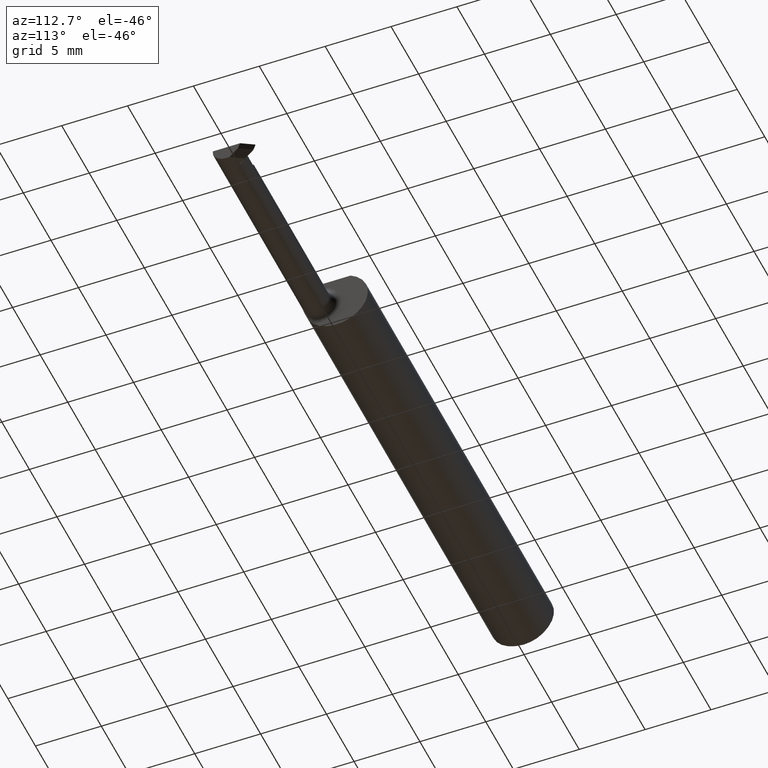
[diagram: clean part render]
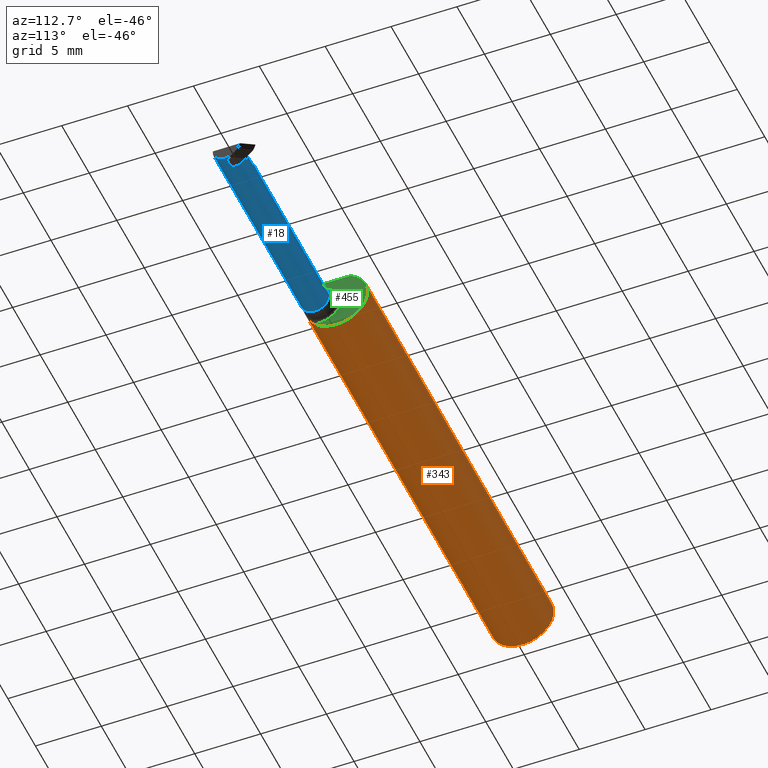
[diagram: same view with three faces highlighted in distinct colors, each labeled with its STEP entity id]
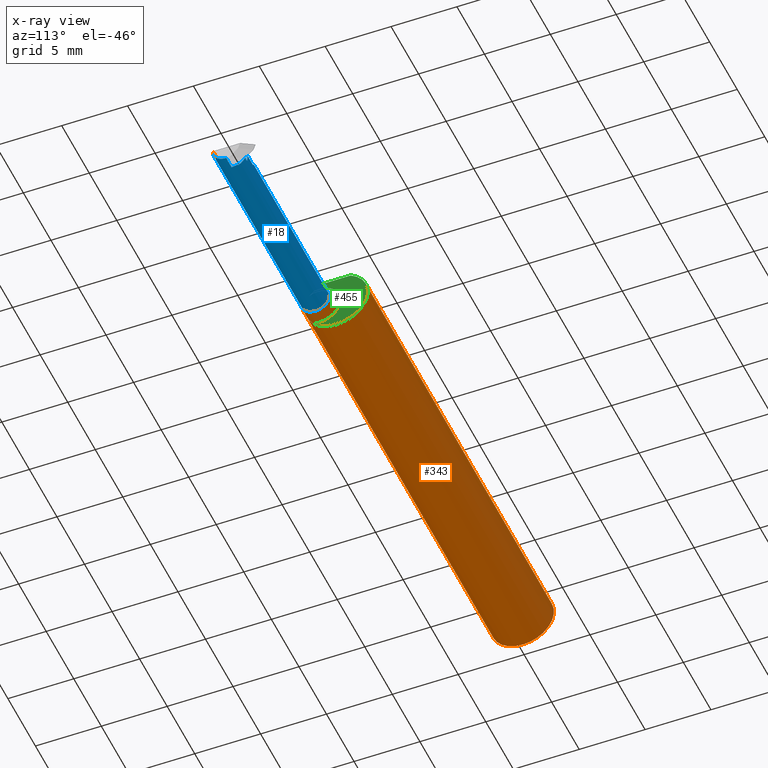
[diagram: x-ray of the same camera — body ghosted, the three highlighted faces saturated]
A machine part, auxiliary view with three faces highlighted in distinct colors.
The next image is the same camera in x-ray (body ghosted, the three faces saturated) — at least one of them is partly hidden behind the body in this view.
Their STEP definitions:

[orange] entity #343 — the highlighted cylindrical surface (edge-blend (fillet) strip) has radius 2.3774 mm, axis along (-1, -0, -0).
#3 = EDGE_CURVE ( 'NONE', #711, #316, #769, .T. ) ;
#8 = AXIS2_PLACEMENT_3D ( 'NONE', #743, #70, #458 ) ;
#12 = DIRECTION ( 'NONE',  ( -1.000000000000000000, -0.000000000000000000, -0.000000000000000000 ) ) ;
#13 = VERTEX_POINT ( 'NONE', #334 ) ;
#17 = CARTESIAN_POINT ( 'NONE',  ( 2.999519565323725069E-32, -0.09359999999999998876, 2.449293598294709866E-16 ) ) ;
#29 = EDGE_CURVE ( 'NONE', #225, #13, #554, .T. ) ;
#37 = CARTESIAN_POINT ( 'NONE',  ( 1.350331455114174739, -0.08838398833671951005, -0.03113919291468855710 ) ) ;
#47 = EDGE_CURVE ( 'NONE', #607, #759, #72, .T. ) ;
#48 = ORIENTED_EDGE ( 'NONE', *, *, #138, .F. ) ;
#55 = EDGE_CURVE ( 'NONE', #57, #711, #511, .T. ) ;
#57 = VERTEX_POINT ( 'NONE', #577 ) ;
#59 = AXIS2_PLACEMENT_3D ( 'NONE', #445, #574, #758 ) ;
#63 = LINE ( 'NONE', #794, #655 ) ;
#70 = DIRECTION ( 'NONE',  ( 1.000000000000000000, 2.788895906680674731E-17, 0.000000000000000000 ) ) ;
#72 = CIRCLE ( 'NONE', #59, 0.09360000000000001652 ) ;
#75 = DIRECTION ( 'NONE',  ( -1.000000000000000000, -0.000000000000000000, -0.000000000000000000 ) ) ;
#76 = CARTESIAN_POINT ( 'NONE',  ( 1.363637246768939493, -0.09207014925426142138, 0.01685371224087028538 ) ) ;
#80 = EDGE_CURVE ( 'NONE', #13, #416, #277, .T. ) ;
#82 = CARTESIAN_POINT ( 'NONE',  ( 1.360061339936166513, -0.09170362580915404627, 0.01875949767692893649 ) ) ;
#119 = VERTEX_POINT ( 'NONE', #779 ) ;
#123 = ORIENTED_EDGE ( 'NONE', *, *, #377, .F. ) ;
#128 = CARTESIAN_POINT ( 'NONE',  ( 1.339999999999999858, 0.000000000000000000, 0.000000000000000000 ) ) ;
#136 = CARTESIAN_POINT ( 'NONE',  ( 1.893146287756234392, -0.09207014925373124825, 0.01685371224376561172 ) ) ;
#138 = EDGE_CURVE ( 'NONE', #585, #313, #425, .T. ) ;
#142 = CARTESIAN_POINT ( 'NONE',  ( 1.340000000000000080, -0.06665037313432836674, 0.06571672360255645384 ) ) ;
#143 = ORIENTED_EDGE ( 'NONE', *, *, #29, .F. ) ;
#150 = VECTOR ( 'NONE', #75, 39.37007874015748143 ) ;
#172 = ORIENTED_EDGE ( 'NONE', *, *, #768, .F. ) ;
#175 = ORIENTED_EDGE ( 'NONE', *, *, #47, .T. ) ;
#196 = CARTESIAN_POINT ( 'NONE',  ( 1.347959848388074811, -0.08665969772256693071, 0.03571742193933166026 ) ) ;
#201 = VECTOR ( 'NONE', #12, 39.37007874015748143 ) ;
#207 = CARTESIAN_POINT ( 'NONE',  ( 1.910000000000000142, -0.09360000000000005815, 1.102182119232617911E-17 ) ) ;
#208 = DIRECTION ( 'NONE',  ( -1.000000000000000000, -0.000000000000000000, -0.000000000000000000 ) ) ;
#223 = CARTESIAN_POINT ( 'NONE',  ( 1.339999999999999858, -0.04209513035969859179, 0.08359999999999992437 ) ) ;
#225 = VERTEX_POINT ( 'NONE', #223 ) ;
#227 = CARTESIAN_POINT ( 'NONE',  ( 1.364999999999999769, -0.09207014925373117886, -0.01685371224376598295 ) ) ;
#228 = CARTESIAN_POINT ( 'NONE',  ( 1.360040276532751058, -0.09170035127622422344, -0.01877567467121205383 ) ) ;
#237 = CARTESIAN_POINT ( 'NONE',  ( 2.000000000000000000, -0.09207014925373097070, -0.01685371224376563601 ) ) ;
#240 = FACE_OUTER_BOUND ( 'NONE', #685, .T. ) ;
#255 = DIRECTION ( 'NONE',  ( 0.000000000000000000, 0.000000000000000000, -1.000000000000000000 ) ) ;
#256 = VECTOR ( 'NONE', #586, 39.37007874015748143 ) ;
#259 = CARTESIAN_POINT ( 'NONE',  ( 0.009999999999999877043, 0.000000000000000000, -0.09360000000000001652 ) ) ;
#265 = CARTESIAN_POINT ( 'NONE',  ( 1.344091173271814377, -0.08239225417103612781, 0.04468952776629343815 ) ) ;
#273 = CARTESIAN_POINT ( 'NONE',  ( 1.350323772047401061, -0.08838176252376904463, 0.03114868400121339337 ) ) ;
#277 = B_SPLINE_CURVE_WITH_KNOTS ( 'NONE', 3,
 ( #142, #507, #746, #631, #265, #196, #273, #449, #688, #327, #82, #522, #76, #515 ),
 .UNSPECIFIED., .F., .F.,
 ( 4, 2, 2, 2, 2, 2, 4 ),
 ( 4.596658918362352711E-05, 0.0004513928604954075175, 0.0008568191318071911216, 0.001262245403118974129, 0.001464958538774865579, 0.001566315106602804257, 0.001667671674430742934 ),
 .UNSPECIFIED. ) ;
#279 = CARTESIAN_POINT ( 'NONE',  ( 1.363627452150747432, -0.09207014925373115111, -0.01685371224376602112 ) ) ;
#291 = ORIENTED_EDGE ( 'NONE', *, *, #55, .T. ) ;
#293 = CARTESIAN_POINT ( 'NONE',  ( 0.009999999999999877043, -0.04209513035969860567, 0.08359999999999989662 ) ) ;
#294 = CARTESIAN_POINT ( 'NONE',  ( 1.354665360541867258, -0.09032542640524104938, -0.02464512177151425773 ) ) ;
#298 = CARTESIAN_POINT ( 'NONE',  ( 1.342599756579036407, -0.07984340602545496324, -0.04912629365152901967 ) ) ;
#304 = CARTESIAN_POINT ( 'NONE',  ( 0.000000000000000000, 0.000000000000000000, 0.000000000000000000 ) ) ;
#313 = VERTEX_POINT ( 'NONE', #436 ) ;
#316 = VERTEX_POINT ( 'NONE', #434 ) ;
#327 = CARTESIAN_POINT ( 'NONE',  ( 1.359051853270285326, -0.09151898401755900747, 0.01965164102476858049 ) ) ;
#333 = EDGE_CURVE ( 'NONE', #714, #585, #606, .T. ) ;
#334 = CARTESIAN_POINT ( 'NONE',  ( 1.340000000000000080, -0.06665037313432836674, 0.06571672360255645384 ) ) ;
#343 = ADVANCED_FACE ( 'NONE', ( #240 ), #671, .T. ) ;
#346 = CARTESIAN_POINT ( 'NONE',  ( 1.340550322316036880, -0.07386771902718257399, -0.05772280571319391568 ) ) ;
#358 = CARTESIAN_POINT ( 'NONE',  ( 1.658607695154586503, -0.09207014925373123437, -0.01685371224376563948 ) ) ;
#363 = DIRECTION ( 'NONE',  ( -1.000000000000000000, -0.000000000000000000, -0.000000000000000000 ) ) ;
#377 = EDGE_CURVE ( 'NONE', #607, #225, #63, .T. ) ;
#383 = CARTESIAN_POINT ( 'NONE',  ( 1.898710277283380599, -0.09308865393932075349, 0.01128972271661917749 ) ) ;
#394 = EDGE_CURVE ( 'NONE', #395, #119, #559, .T. ) ;
#395 = VERTEX_POINT ( 'NONE', #621 ) ;
#411 = DIRECTION ( 'NONE',  ( 0.000000000000000000, 0.000000000000000000, 1.000000000000000000 ) ) ;
#412 = CARTESIAN_POINT ( 'NONE',  ( 1.364999999999999769, -0.09207014925373117886, -0.01685371224376598295 ) ) ;
#415 = CARTESIAN_POINT ( 'NONE',  ( 1.344085356245837692, -0.08239036684830187973, -0.04469806793346454282 ) ) ;
#416 = VERTEX_POINT ( 'NONE', #618 ) ;
#420 = CARTESIAN_POINT ( 'NONE',  ( 1.339999999999999636, -0.07042526556309514074, -0.06188820058547970376 ) ) ;
#425 = B_SPLINE_CURVE_WITH_KNOTS ( 'NONE', 3,
 ( #412, #279, #647, #228, #587, #470, #294, #37, #640, #415, #298, #346, #420, #717 ),
 .UNSPECIFIED., .F., .F.,
 ( 4, 2, 2, 2, 2, 2, 4 ),
 ( 1.967287740839726378E-07, 0.0001030870799334352074, 0.0002059774310927864241, 0.0004117581334114743833, 0.0008233195380488391888, 0.001234880942686203886, 0.001646442347323568258 ),
 .UNSPECIFIED. ) ;
#434 = CARTESIAN_POINT ( 'NONE',  ( 1.893146287756234392, -0.09207014925373124825, 0.01685371224376561172 ) ) ;
#436 = CARTESIAN_POINT ( 'NONE',  ( 1.340000000000000080, -0.06665037313432836674, -0.06571672360255645384 ) ) ;
#439 = AXIS2_PLACEMENT_3D ( 'NONE', #304, #363, #734 ) ;
#440 = CARTESIAN_POINT ( 'NONE',  ( 0.000000000000000000, 0.04209513035969860567, 0.08359999999999989662 ) ) ;
#445 = CARTESIAN_POINT ( 'NONE',  ( 0.009999999999999877043, 0.000000000000000000, 0.000000000000000000 ) ) ;
#449 = CARTESIAN_POINT ( 'NONE',  ( 1.354680805881167904, -0.09033173497866223145, 0.02462299273440530026 ) ) ;
#452 = CIRCLE ( 'NONE', #784, 0.09360000000000001652 ) ;
#458 = DIRECTION ( 'NONE',  ( 0.000000000000000000, 1.000000000000000000, 0.000000000000000000 ) ) ;
#470 = CARTESIAN_POINT ( 'NONE',  ( 1.356246460913175467, -0.09087368479272676935, -0.02250960670043058304 ) ) ;
#487 = EDGE_CURVE ( 'NONE', #759, #119, #452, .T. ) ;
#490 = ORIENTED_EDGE ( 'NONE', *, *, #600, .T. ) ;
#502 = CIRCLE ( 'NONE', #727, 0.09360000000000001652 ) ;
#504 = CARTESIAN_POINT ( 'NONE',  ( 1.904343558428414296, -0.09359999999999998876, 0.005656441571585646769 ) ) ;
#505 = DIRECTION ( 'NONE',  ( 0.000000000000000000, 1.000000000000000000, 0.000000000000000000 ) ) ;
#507 = CARTESIAN_POINT ( 'NONE',  ( 1.339999999999998748, -0.07042168361208703264, 0.06189183342592221443 ) ) ;
#511 = LINE ( 'NONE', #17, #201 ) ;
#514 = VECTOR ( 'NONE', #788, 39.37007874015748143 ) ;
#515 = CARTESIAN_POINT ( 'NONE',  ( 1.364999999999999769, -0.09207014925373117886, 0.01685371224376597948 ) ) ;
#517 = ORIENTED_EDGE ( 'NONE', *, *, #394, .F. ) ;
#522 = CARTESIAN_POINT ( 'NONE',  ( 1.362341178892590765, -0.09198016210675404036, 0.01735291095036459175 ) ) ;
#554 = CIRCLE ( 'NONE', #8, 0.09360000000000001652 ) ;
#557 = ORIENTED_EDGE ( 'NONE', *, *, #487, .T. ) ;
#559 = LINE ( 'NONE', #440, #150 ) ;
#574 = DIRECTION ( 'NONE',  ( 1.000000000000000000, 0.000000000000000000, 0.000000000000000000 ) ) ;
#577 = CARTESIAN_POINT ( 'NONE',  ( 2.000000000000000000, -0.09360000000000001652, 0.000000000000000000 ) ) ;
#585 = VERTEX_POINT ( 'NONE', #227 ) ;
#586 = DIRECTION ( 'NONE',  ( 1.000000000000000000, 2.788895906680674731E-17, 0.000000000000000000 ) ) ;
#587 = CARTESIAN_POINT ( 'NONE',  ( 1.359025502329856971, -0.09151353859653628409, -0.01967662315907503859 ) ) ;
#599 = CARTESIAN_POINT ( 'NONE',  ( 1.910000000000000142, -0.09360000000000005815, 1.102182119232617911E-17 ) ) ;
#600 = EDGE_CURVE ( 'NONE', #714, #57, #502, .T. ) ;
#604 = CIRCLE ( 'NONE', #658, 0.09360000000000001652 ) ;
#606 = LINE ( 'NONE', #358, #514 ) ;
#607 = VERTEX_POINT ( 'NONE', #293 ) ;
#615 = DIRECTION ( 'NONE',  ( 1.000000000000000000, 0.000000000000000000, 0.000000000000000000 ) ) ;
#618 = CARTESIAN_POINT ( 'NONE',  ( 1.364999999999999769, -0.09207014925373117886, 0.01685371224376597948 ) ) ;
#621 = CARTESIAN_POINT ( 'NONE',  ( 1.339999999999999858, 0.04209513035969860567, 0.08359999999999989662 ) ) ;
#629 = ORIENTED_EDGE ( 'NONE', *, *, #80, .F. ) ;
#631 = CARTESIAN_POINT ( 'NONE',  ( 1.342581066291113512, -0.07980979860428878692, 0.04918348233834508171 ) ) ;
#637 = CARTESIAN_POINT ( 'NONE',  ( 2.000000000000000000, 0.000000000000000000, 0.000000000000000000 ) ) ;
#640 = CARTESIAN_POINT ( 'NONE',  ( 1.347994345349610601, -0.08669318782781051946, -0.03564240466963949222 ) ) ;
#646 = EDGE_CURVE ( 'NONE', #416, #316, #652, .T. ) ;
#647 = CARTESIAN_POINT ( 'NONE',  ( 1.362324523699174117, -0.09197884972478903576, -0.01736005722475561508 ) ) ;
#652 = LINE ( 'NONE', #708, #256 ) ;
#655 = VECTOR ( 'NONE', #615, 39.37007874015748143 ) ;
#656 = ORIENTED_EDGE ( 'NONE', *, *, #333, .F. ) ;
#658 = AXIS2_PLACEMENT_3D ( 'NONE', #128, #748, #505 ) ;
#671 = CYLINDRICAL_SURFACE ( 'NONE', #439, 0.09360000000000001652 ) ;
#679 = CARTESIAN_POINT ( 'NONE',  ( 0.009999999999999877043, 0.000000000000000000, 0.000000000000000000 ) ) ;
#683 = DIRECTION ( 'NONE',  ( 1.000000000000000000, 0.000000000000000000, 0.000000000000000000 ) ) ;
#685 = EDGE_LOOP ( 'NONE', ( #656, #490, #291, #719, #785, #629, #143, #123, #175, #557, #517, #172, #48 ) ) ;
#688 = CARTESIAN_POINT ( 'NONE',  ( 1.356246254951216645, -0.09087486346021445005, 0.02250610835616505268 ) ) ;
#708 = CARTESIAN_POINT ( 'NONE',  ( 1.658607695154586503, -0.09207014925373123437, 0.01685371224376563948 ) ) ;
#711 = VERTEX_POINT ( 'NONE', #599 ) ;
#714 = VERTEX_POINT ( 'NONE', #237 ) ;
#717 = CARTESIAN_POINT ( 'NONE',  ( 1.340000000000000080, -0.06665037313432836674, -0.06571672360255645384 ) ) ;
#719 = ORIENTED_EDGE ( 'NONE', *, *, #3, .T. ) ;
#727 = AXIS2_PLACEMENT_3D ( 'NONE', #637, #208, #411 ) ;
#734 = DIRECTION ( 'NONE',  ( 0.000000000000000000, 0.000000000000000000, 1.000000000000000000 ) ) ;
#743 = CARTESIAN_POINT ( 'NONE',  ( 1.339999999999999858, 0.000000000000000000, 0.000000000000000000 ) ) ;
#746 = CARTESIAN_POINT ( 'NONE',  ( 1.340533642810113779, -0.07379783313327896443, 0.05781434694793456674 ) ) ;
#748 = DIRECTION ( 'NONE',  ( 1.000000000000000000, 2.788895906680674731E-17, 0.000000000000000000 ) ) ;
#758 = DIRECTION ( 'NONE',  ( 0.000000000000000000, 0.000000000000000000, -1.000000000000000000 ) ) ;
#759 = VERTEX_POINT ( 'NONE', #259 ) ;
#768 = EDGE_CURVE ( 'NONE', #313, #395, #604, .T. ) ;
#769 =( BOUNDED_CURVE ( )  B_SPLINE_CURVE ( 3, ( #207, #504, #383, #136 ),
 .UNSPECIFIED., .F., .T. ) 
 B_SPLINE_CURVE_WITH_KNOTS ( ( 4, 4 ),
 ( 4.712388980384689674, 4.893437473578370778 ),
 .UNSPECIFIED. ) 
 CURVE ( )  GEOMETRIC_REPRESENTATION_ITEM ( )  RATIONAL_B_SPLINE_CURVE ( ( 1.000000000000000000, 0.9972703184196843873, 0.9972703184196843873, 1.000000000000000000 ) ) 
 REPRESENTATION_ITEM ( '' )  );
#779 = CARTESIAN_POINT ( 'NONE',  ( 0.009999999999999877043, 0.04209513035969860567, 0.08359999999999989662 ) ) ;
#784 = AXIS2_PLACEMENT_3D ( 'NONE', #679, #683, #255 ) ;
#785 = ORIENTED_EDGE ( 'NONE', *, *, #646, .F. ) ;
#788 = DIRECTION ( 'NONE',  ( -1.000000000000000000, -2.788895906680674731E-17, -0.000000000000000000 ) ) ;
#794 = CARTESIAN_POINT ( 'NONE',  ( 0.000000000000000000, -0.04209513035969860567, 0.08359999999999989662 ) ) ;

[blue] entity #18 — the highlighted cylindrical surface (edge-blend (fillet) strip) has radius 1.0668 mm, axis along (-1, -0, -0).
#18 = ADVANCED_FACE ( 'NONE', ( #568 ), #393, .T. ) ;
#19 = CARTESIAN_POINT ( 'NONE',  ( 1.893146287756234392, -0.09207014925373124825, 0.01685371224376561172 ) ) ;
#24 = AXIS2_PLACEMENT_3D ( 'NONE', #645, #278, #95 ) ;
#35 = DIRECTION ( 'NONE',  ( 1.000000000000000000, 0.000000000000000000, 0.000000000000000000 ) ) ;
#49 = CARTESIAN_POINT ( 'NONE',  ( 1.944157112200977977, -0.01465827810819487174, -0.01573347692346837093 ) ) ;
#54 = ORIENTED_EDGE ( 'NONE', *, *, #430, .F. ) ;
#56 = CARTESIAN_POINT ( 'NONE',  ( 1.958233473925546475, -0.01559817617613182966, -0.01788466902292840111 ) ) ;
#58 = LINE ( 'NONE', #174, #203 ) ;
#60 = VERTEX_POINT ( 'NONE', #684 ) ;
#69 = LINE ( 'NONE', #750, #204 ) ;
#90 = VERTEX_POINT ( 'NONE', #200 ) ;
#95 = DIRECTION ( 'NONE',  ( 0.000000000000000000, -5.284824987743351801E-15, -1.000000000000000000 ) ) ;
#107 = ORIENTED_EDGE ( 'NONE', *, *, #624, .T. ) ;
#113 = CARTESIAN_POINT ( 'NONE',  ( 1.958123224213872859, -0.01543225915984460482, -0.01752779390450326033 ) ) ;
#120 = CARTESIAN_POINT ( 'NONE',  ( 1.945131938701440522, -0.01263206735890140542, -0.01071842933564133397 ) ) ;
#131 = CARTESIAN_POINT ( 'NONE',  ( 1.339999999999999858, -0.05360000000000006426, 0.000000000000000000 ) ) ;
#140 = CARTESIAN_POINT ( 'NONE',  ( 1.960892469047971876, -0.03472121277308289761, -0.03875606750253003663 ) ) ;
#147 = CARTESIAN_POINT ( 'NONE',  ( 1.959772643405777393, -0.02989775884994197441, -0.03485017143795818978 ) ) ;
#148 = DIRECTION ( 'NONE',  ( 0.000000000000000000, -1.000000000000000000, 0.000000000000000000 ) ) ;
#153 = CARTESIAN_POINT ( 'NONE',  ( 1.910000000000000142, -0.01159999999999993849, 8.082668874372542852E-17 ) ) ;
#157 = ORIENTED_EDGE ( 'NONE', *, *, #561, .T. ) ;
#162 = ORIENTED_EDGE ( 'NONE', *, *, #260, .F. ) ;
#166 = CARTESIAN_POINT ( 'NONE',  ( 1.959119529091848610, -0.03288110353594955737, -0.03670228894909062511 ) ) ;
#170 = ORIENTED_EDGE ( 'NONE', *, *, #340, .T. ) ;
#173 = LINE ( 'NONE', #426, #389 ) ;
#174 = CARTESIAN_POINT ( 'NONE',  ( 2.152215390309172971, -0.05359999999999999487, -0.04200000000000003730 ) ) ;
#181 = VERTEX_POINT ( 'NONE', #153 ) ;
#182 = CARTESIAN_POINT ( 'NONE',  ( 1.947215390309172900, -0.01159999999999992634, 0.000000000000000000 ) ) ;
#199 = CARTESIAN_POINT ( 'NONE',  ( 1.961640102722212120, -0.05360000000000004344, -0.04200000000000007200 ) ) ;
#200 = CARTESIAN_POINT ( 'NONE',  ( 2.000000000000000000, -0.05359999999999999487, -0.04200000000000003730 ) ) ;
#203 = VECTOR ( 'NONE', #244, 39.37007874015748143 ) ;
#204 = VECTOR ( 'NONE', #573, 39.37007874015748143 ) ;
#211 = CARTESIAN_POINT ( 'NONE',  ( 1.958149881984653229, -0.01526487251527728663, -0.01717645647600302486 ) ) ;
#214 = AXIS2_PLACEMENT_3D ( 'NONE', #131, #700, #148 ) ;
#216 = CARTESIAN_POINT ( 'NONE',  ( 1.958065731429537548, -0.01495149155541240261, -0.01645920567192139458 ) ) ;
#227 = CARTESIAN_POINT ( 'NONE',  ( 1.364999999999999769, -0.09207014925373117886, -0.01685371224376598295 ) ) ;
#237 = CARTESIAN_POINT ( 'NONE',  ( 2.000000000000000000, -0.09207014925373097070, -0.01685371224376563601 ) ) ;
#238 = CARTESIAN_POINT ( 'NONE',  ( 1.958197195546113933, -0.01554231335609888680, -0.01776597020650210954 ) ) ;
#239 = ORIENTED_EDGE ( 'NONE', *, *, #333, .T. ) ;
#241 =( BOUNDED_CURVE ( )  B_SPLINE_CURVE ( 3, ( #49, #120, #556, #495 ),
 .UNSPECIFIED., .F., .T. ) 
 B_SPLINE_CURVE_WITH_KNOTS ( ( 4, 4 ),
 ( 1.186823891356144189, 1.570796326794896780 ),
 .UNSPECIFIED. ) 
 CURVE ( )  GEOMETRIC_REPRESENTATION_ITEM ( )  RATIONAL_B_SPLINE_CURVE ( ( 1.000000000000000000, 0.9877514556317759098, 0.9877514556317759098, 1.000000000000000000 ) ) 
 REPRESENTATION_ITEM ( '' )  );
#242 = ORIENTED_EDGE ( 'NONE', *, *, #760, .F. ) ;
#244 = DIRECTION ( 'NONE',  ( -1.000000000000000000, -0.000000000000000000, -0.000000000000000000 ) ) ;
#250 = EDGE_CURVE ( 'NONE', #90, #466, #58, .T. ) ;
#256 = VECTOR ( 'NONE', #586, 39.37007874015748143 ) ;
#260 = EDGE_CURVE ( 'NONE', #60, #270, #241, .T. ) ;
#266 = ORIENTED_EDGE ( 'NONE', *, *, #646, .T. ) ;
#267 =( BOUNDED_CURVE ( )  B_SPLINE_CURVE ( 3, ( #325, #378, #140, #741 ),
 .UNSPECIFIED., .F., .T. ) 
 B_SPLINE_CURVE_WITH_KNOTS ( ( 4, 4 ),
 ( 3.333578871309169411, 4.014249778417084968 ),
 .UNSPECIFIED. ) 
 CURVE ( )  GEOMETRIC_REPRESENTATION_ITEM ( )  RATIONAL_B_SPLINE_CURVE ( ( 1.000000000000000000, 0.9617618287043507852, 0.9617618287043507852, 1.000000000000000000 ) ) 
 REPRESENTATION_ITEM ( '' )  );
#270 = VERTEX_POINT ( 'NONE', #182 ) ;
#278 = DIRECTION ( 'NONE',  ( -1.000000000000000000, -0.000000000000000000, -0.000000000000000000 ) ) ;
#300 = CARTESIAN_POINT ( 'NONE',  ( 1.957981087998196923, -0.01465827810819258538, -0.01573347692346844379 ) ) ;
#306 =( BOUNDED_CURVE ( )  B_SPLINE_CURVE ( 3, ( #56, #238, #307, #113 ),
 .UNSPECIFIED., .F., .T. ) 
 B_SPLINE_CURVE_WITH_KNOTS ( ( 4, 4 ),
 ( 3.487116828093232535, 3.496487303261012869 ),
 .UNSPECIFIED. ) 
 CURVE ( )  GEOMETRIC_REPRESENTATION_ITEM ( )  RATIONAL_B_SPLINE_CURVE ( ( 1.000000000000000000, 0.9999926828629792652, 0.9999926828629792652, 1.000000000000000000 ) ) 
 REPRESENTATION_ITEM ( '' )  );
#307 = CARTESIAN_POINT ( 'NONE',  ( 1.958160445373316572, -0.01548700727932099397, -0.01764701096325264548 ) ) ;
#310 = AXIS2_PLACEMENT_3D ( 'NONE', #630, #329, #326 ) ;
#316 = VERTEX_POINT ( 'NONE', #434 ) ;
#317 = CARTESIAN_POINT ( 'NONE',  ( 1.851690087160739573, -0.01159999999999998532, 0.05830991283926018759 ) ) ;
#325 = CARTESIAN_POINT ( 'NONE',  ( 1.961640102722212120, -0.05360000000000004344, -0.04200000000000007200 ) ) ;
#326 = DIRECTION ( 'NONE',  ( 0.000000000000000000, -1.000000000000000000, 0.000000000000000000 ) ) ;
#329 = DIRECTION ( 'NONE',  ( -1.000000000000000000, -2.788895906680674731E-17, -0.000000000000000000 ) ) ;
#333 = EDGE_CURVE ( 'NONE', #714, #585, #606, .T. ) ;
#339 = CARTESIAN_POINT ( 'NONE',  ( 2.000000000000000000, -0.05360000000000004344, 0.000000000000000000 ) ) ;
#340 = EDGE_CURVE ( 'NONE', #649, #496, #306, .T. ) ;
#345 = CARTESIAN_POINT ( 'NONE',  ( 1.958233473925546475, -0.01559817617613182966, -0.01788466902292840111 ) ) ;
#358 = CARTESIAN_POINT ( 'NONE',  ( 1.658607695154586503, -0.09207014925373123437, -0.01685371224376563948 ) ) ;
#376 = ORIENTED_EDGE ( 'NONE', *, *, #674, .F. ) ;
#378 = CARTESIAN_POINT ( 'NONE',  ( 1.961435826313443043, -0.04388190474321931878, -0.04200000000000012751 ) ) ;
#380 = EDGE_LOOP ( 'NONE', ( #157, #107, #242, #721, #376, #239, #54, #266, #661, #399, #162, #680, #523, #170 ) ) ;
#388 = AXIS2_PLACEMENT_3D ( 'NONE', #339, #35, #472 ) ;
#389 = VECTOR ( 'NONE', #551, 39.37007874015748143 ) ;
#393 = CYLINDRICAL_SURFACE ( 'NONE', #214, 0.04200000000000010669 ) ;
#399 = ORIENTED_EDGE ( 'NONE', *, *, #510, .T. ) ;
#414 = CARTESIAN_POINT ( 'NONE',  ( 1.957981087998196923, -0.01465827810819258538, -0.01573347692346844379 ) ) ;
#416 = VERTEX_POINT ( 'NONE', #618 ) ;
#426 = CARTESIAN_POINT ( 'NONE',  ( 1.339999999999999858, -0.01465827810819347703, -0.01573347692346488413 ) ) ;
#430 = EDGE_CURVE ( 'NONE', #416, #585, #638, .T. ) ;
#432 = VERTEX_POINT ( 'NONE', #513 ) ;
#434 = CARTESIAN_POINT ( 'NONE',  ( 1.893146287756234392, -0.09207014925373124825, 0.01685371224376561172 ) ) ;
#466 = VERTEX_POINT ( 'NONE', #199 ) ;
#469 = CARTESIAN_POINT ( 'NONE',  ( 1.960072361890374815, -0.02716878841581298054, -0.03264032864711929188 ) ) ;
#472 = DIRECTION ( 'NONE',  ( 0.000000000000000000, 0.000000000000000000, 1.000000000000000000 ) ) ;
#476 = CARTESIAN_POINT ( 'NONE',  ( 1.958123224213872859, -0.03607220609549662699, -0.03816774084015536056 ) ) ;
#495 = CARTESIAN_POINT ( 'NONE',  ( 1.947215390309172900, -0.01159999999999992634, 0.000000000000000000 ) ) ;
#496 = VERTEX_POINT ( 'NONE', #503 ) ;
#497 = CARTESIAN_POINT ( 'NONE',  ( 1.839736977044367672, -0.06867161373106603350, 0.07026302295563199851 ) ) ;
#503 = CARTESIAN_POINT ( 'NONE',  ( 1.958123224213872859, -0.01543225915984460482, -0.01752779390450326033 ) ) ;
#510 = EDGE_CURVE ( 'NONE', #181, #270, #69, .T. ) ;
#513 = CARTESIAN_POINT ( 'NONE',  ( 1.960072361890374815, -0.02716878841581298054, -0.03264032864711929188 ) ) ;
#514 = VECTOR ( 'NONE', #788, 39.37007874015748143 ) ;
#523 = ORIENTED_EDGE ( 'NONE', *, *, #622, .F. ) ;
#531 = CIRCLE ( 'NONE', #388, 0.04200000000000003730 ) ;
#551 = DIRECTION ( 'NONE',  ( -1.000000000000000000, -2.788895906680674731E-17, -0.000000000000000000 ) ) ;
#556 = CARTESIAN_POINT ( 'NONE',  ( 1.946164006060342011, -0.01159999999999992634, -0.005408903059652851730 ) ) ;
#561 = EDGE_CURVE ( 'NONE', #496, #632, #626, .T. ) ;
#565 = CARTESIAN_POINT ( 'NONE',  ( 1.910000000000000142, -0.01159999999999993849, 8.082668874372542852E-17 ) ) ;
#568 = FACE_OUTER_BOUND ( 'NONE', #380, .T. ) ;
#573 = DIRECTION ( 'NONE',  ( 1.000000000000000000, 2.788895906680674731E-17, 0.000000000000000000 ) ) ;
#585 = VERTEX_POINT ( 'NONE', #227 ) ;
#586 = DIRECTION ( 'NONE',  ( 1.000000000000000000, 2.788895906680674731E-17, 0.000000000000000000 ) ) ;
#606 = LINE ( 'NONE', #358, #514 ) ;
#618 = CARTESIAN_POINT ( 'NONE',  ( 1.364999999999999769, -0.09207014925373117886, 0.01685371224376597948 ) ) ;
#622 = EDGE_CURVE ( 'NONE', #649, #701, #648, .T. ) ;
#624 = EDGE_CURVE ( 'NONE', #632, #432, #706, .T. ) ;
#626 = CIRCLE ( 'NONE', #24, 0.04200000000000012057 ) ;
#630 = CARTESIAN_POINT ( 'NONE',  ( 1.364999999999999769, -0.05360000000000006426, 0.000000000000000000 ) ) ;
#632 = VERTEX_POINT ( 'NONE', #659 ) ;
#638 = CIRCLE ( 'NONE', #310, 0.04200000000000019690 ) ;
#645 = CARTESIAN_POINT ( 'NONE',  ( 1.958123224213872859, -0.05360000000000004344, 0.000000000000000000 ) ) ;
#646 = EDGE_CURVE ( 'NONE', #416, #316, #652, .T. ) ;
#648 =( BOUNDED_CURVE ( )  B_SPLINE_CURVE ( 3, ( #345, #211, #216, #414 ),
 .UNSPECIFIED., .F., .T. ) 
 B_SPLINE_CURVE_WITH_KNOTS ( ( 4, 4 ),
 ( 4.464501209210060217, 4.520402762665331586 ),
 .UNSPECIFIED. ) 
 CURVE ( )  GEOMETRIC_REPRESENTATION_ITEM ( )  RATIONAL_B_SPLINE_CURVE ( ( 1.000000000000000000, 0.9997396016470319058, 0.9997396016470319058, 1.000000000000000000 ) ) 
 REPRESENTATION_ITEM ( '' )  );
#649 = VERTEX_POINT ( 'NONE', #762 ) ;
#652 = LINE ( 'NONE', #708, #256 ) ;
#659 = CARTESIAN_POINT ( 'NONE',  ( 1.958123224213872859, -0.03607220609549662699, -0.03816774084015536056 ) ) ;
#661 = ORIENTED_EDGE ( 'NONE', *, *, #771, .T. ) ;
#674 = EDGE_CURVE ( 'NONE', #714, #90, #531, .T. ) ;
#680 = ORIENTED_EDGE ( 'NONE', *, *, #733, .F. ) ;
#684 = CARTESIAN_POINT ( 'NONE',  ( 1.944157112200977977, -0.01465827810819487174, -0.01573347692346837093 ) ) ;
#700 = DIRECTION ( 'NONE',  ( -1.000000000000000000, -2.788895906680674731E-17, -0.000000000000000000 ) ) ;
#701 = VERTEX_POINT ( 'NONE', #300 ) ;
#706 =( BOUNDED_CURVE ( )  B_SPLINE_CURVE ( 3, ( #476, #166, #147, #469 ),
 .UNSPECIFIED., .F., .T. ) 
 B_SPLINE_CURVE_WITH_KNOTS ( ( 4, 4 ),
 ( 2.786698003918573363, 3.036865397300259950 ),
 .UNSPECIFIED. ) 
 CURVE ( )  GEOMETRIC_REPRESENTATION_ITEM ( )  RATIONAL_B_SPLINE_CURVE ( ( 1.000000000000000000, 0.9947914859276567601, 0.9947914859276567601, 1.000000000000000000 ) ) 
 REPRESENTATION_ITEM ( '' )  );
#708 = CARTESIAN_POINT ( 'NONE',  ( 1.658607695154586503, -0.09207014925373123437, 0.01685371224376563948 ) ) ;
#714 = VERTEX_POINT ( 'NONE', #237 ) ;
#721 = ORIENTED_EDGE ( 'NONE', *, *, #250, .F. ) ;
#729 =( BOUNDED_CURVE ( )  B_SPLINE_CURVE ( 3, ( #19, #497, #317, #565 ),
 .UNSPECIFIED., .F., .T. ) 
 B_SPLINE_CURVE_WITH_KNOTS ( ( 4, 4 ),
 ( 5.125301605908232361, 7.853981633974481902 ),
 .UNSPECIFIED. ) 
 CURVE ( )  GEOMETRIC_REPRESENTATION_ITEM ( )  RATIONAL_B_SPLINE_CURVE ( ( 1.000000000000000000, 0.4699951750264988459, 0.4699951750264988459, 1.000000000000000000 ) ) 
 REPRESENTATION_ITEM ( '' )  );
#733 = EDGE_CURVE ( 'NONE', #701, #60, #173, .T. ) ;
#741 = CARTESIAN_POINT ( 'NONE',  ( 1.960072361890374815, -0.02716878841581298054, -0.03264032864711929188 ) ) ;
#750 = CARTESIAN_POINT ( 'NONE',  ( 1.339999999999999858, -0.01159999999999995236, 8.082668874372542852E-17 ) ) ;
#760 = EDGE_CURVE ( 'NONE', #466, #432, #267, .T. ) ;
#762 = CARTESIAN_POINT ( 'NONE',  ( 1.958233473925546475, -0.01559817617613182966, -0.01788466902292840111 ) ) ;
#771 = EDGE_CURVE ( 'NONE', #316, #181, #729, .T. ) ;
#788 = DIRECTION ( 'NONE',  ( -1.000000000000000000, -2.788895906680674731E-17, -0.000000000000000000 ) ) ;

[green] entity #455 — the highlighted planar face has unit normal (1, 0, 0).
#8 = AXIS2_PLACEMENT_3D ( 'NONE', #743, #70, #458 ) ;
#13 = VERTEX_POINT ( 'NONE', #334 ) ;
#25 = DIRECTION ( 'NONE',  ( -2.788895906680674731E-17, 1.000000000000000000, 0.000000000000000000 ) ) ;
#29 = EDGE_CURVE ( 'NONE', #225, #13, #554, .T. ) ;
#36 = CIRCLE ( 'NONE', #114, 0.06699999999999999012 ) ;
#46 = DIRECTION ( 'NONE',  ( 0.000000000000000000, -1.000000000000000000, 0.000000000000000000 ) ) ;
#70 = DIRECTION ( 'NONE',  ( 1.000000000000000000, 2.788895906680674731E-17, 0.000000000000000000 ) ) ;
#100 = LINE ( 'NONE', #773, #589 ) ;
#114 = AXIS2_PLACEMENT_3D ( 'NONE', #597, #582, #46 ) ;
#128 = CARTESIAN_POINT ( 'NONE',  ( 1.339999999999999858, 0.000000000000000000, 0.000000000000000000 ) ) ;
#135 = EDGE_CURVE ( 'NONE', #225, #395, #100, .T. ) ;
#171 = DIRECTION ( 'NONE',  ( -2.788895906680674731E-17, 1.000000000000000000, 0.000000000000000000 ) ) ;
#192 = ORIENTED_EDGE ( 'NONE', *, *, #29, .T. ) ;
#220 = EDGE_CURVE ( 'NONE', #13, #313, #36, .T. ) ;
#223 = CARTESIAN_POINT ( 'NONE',  ( 1.339999999999999858, -0.04209513035969859179, 0.08359999999999992437 ) ) ;
#225 = VERTEX_POINT ( 'NONE', #223 ) ;
#313 = VERTEX_POINT ( 'NONE', #436 ) ;
#332 = PLANE ( 'NONE',  #678 ) ;
#334 = CARTESIAN_POINT ( 'NONE',  ( 1.340000000000000080, -0.06665037313432836674, 0.06571672360255645384 ) ) ;
#360 = ORIENTED_EDGE ( 'NONE', *, *, #220, .T. ) ;
#392 = DIRECTION ( 'NONE',  ( 1.000000000000000000, 2.788895906680674731E-17, 0.000000000000000000 ) ) ;
#395 = VERTEX_POINT ( 'NONE', #621 ) ;
#436 = CARTESIAN_POINT ( 'NONE',  ( 1.340000000000000080, -0.06665037313432836674, -0.06571672360255645384 ) ) ;
#455 = ADVANCED_FACE ( 'NONE', ( #509 ), #332, .T. ) ;
#458 = DIRECTION ( 'NONE',  ( 0.000000000000000000, 1.000000000000000000, 0.000000000000000000 ) ) ;
#505 = DIRECTION ( 'NONE',  ( 0.000000000000000000, 1.000000000000000000, 0.000000000000000000 ) ) ;
#509 = FACE_OUTER_BOUND ( 'NONE', #636, .T. ) ;
#554 = CIRCLE ( 'NONE', #8, 0.09360000000000001652 ) ;
#562 = CARTESIAN_POINT ( 'NONE',  ( 1.339999999999999858, 0.09359999999999991938, 0.000000000000000000 ) ) ;
#582 = DIRECTION ( 'NONE',  ( -1.000000000000000000, -2.788895906680674731E-17, -0.000000000000000000 ) ) ;
#589 = VECTOR ( 'NONE', #171, 39.37007874015748143 ) ;
#597 = CARTESIAN_POINT ( 'NONE',  ( 1.340000000000000080, -0.05360000000000006426, 0.000000000000000000 ) ) ;
#604 = CIRCLE ( 'NONE', #658, 0.09360000000000001652 ) ;
#619 = ORIENTED_EDGE ( 'NONE', *, *, #135, .F. ) ;
#621 = CARTESIAN_POINT ( 'NONE',  ( 1.339999999999999858, 0.04209513035969860567, 0.08359999999999989662 ) ) ;
#636 = EDGE_LOOP ( 'NONE', ( #697, #619, #192, #360 ) ) ;
#658 = AXIS2_PLACEMENT_3D ( 'NONE', #128, #748, #505 ) ;
#678 = AXIS2_PLACEMENT_3D ( 'NONE', #562, #392, #25 ) ;
#697 = ORIENTED_EDGE ( 'NONE', *, *, #768, .T. ) ;
#743 = CARTESIAN_POINT ( 'NONE',  ( 1.339999999999999858, 0.000000000000000000, 0.000000000000000000 ) ) ;
#748 = DIRECTION ( 'NONE',  ( 1.000000000000000000, 2.788895906680674731E-17, 0.000000000000000000 ) ) ;
#768 = EDGE_CURVE ( 'NONE', #313, #395, #604, .T. ) ;
#773 = CARTESIAN_POINT ( 'NONE',  ( 1.339999999999999858, 0.09359999999999998876, 0.08359999999999992437 ) ) ;